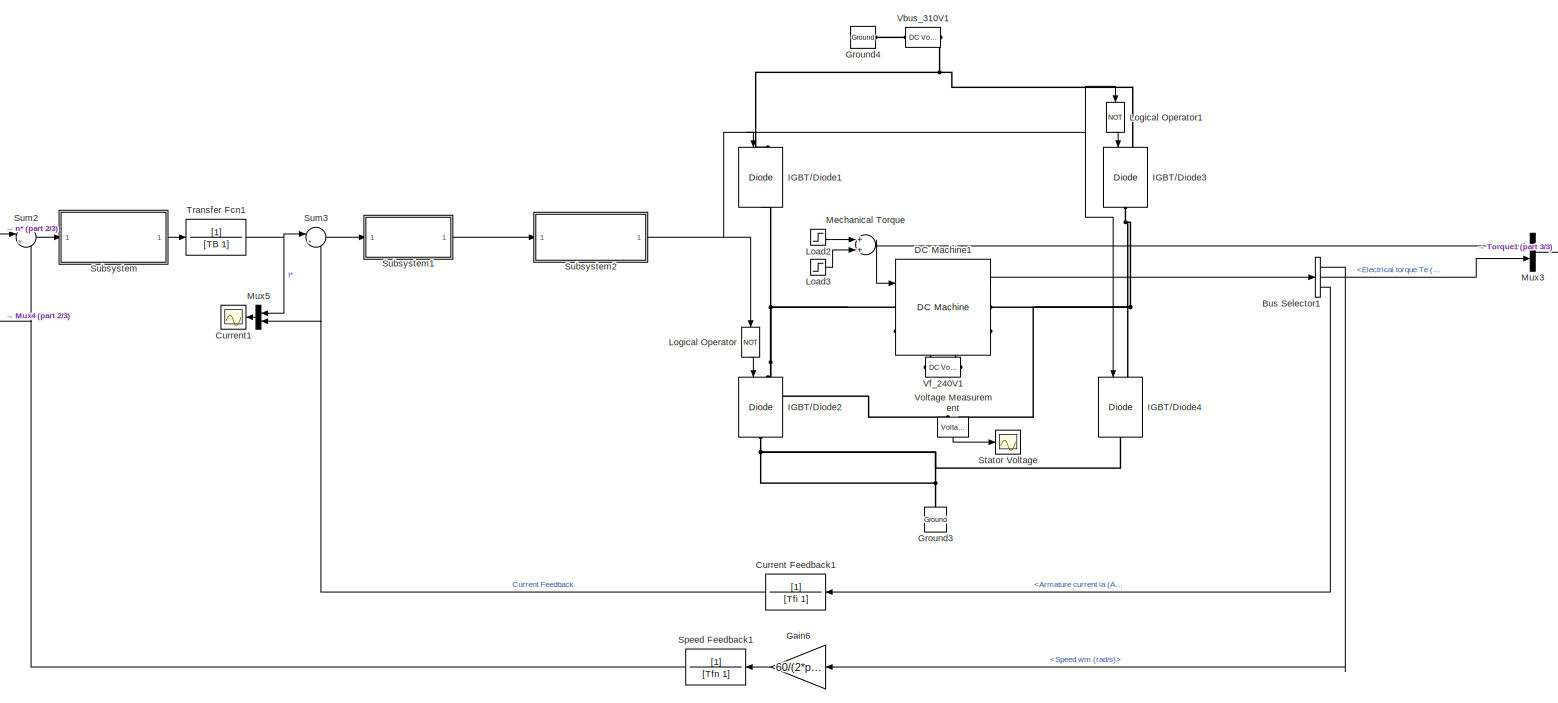
[diagram: root canvas - part 1/3, most of the canvas]
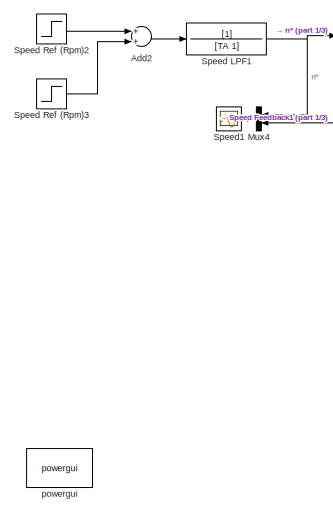
[diagram: root canvas - part 2/3, middle left region]
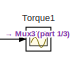
[diagram: root canvas - part 3/3, middle right region]
MODEL slx_61edc5777968
KIND model
CONFIG AbsTol = auto
CONFIG EnableMultiTasking = off
CONFIG FixedStep = auto
CONFIG MaxStep = 1e-6
CONFIG MinStep = auto
CONFIG RelTol = 1e-3
CONFIG SampleTimeConstraint = Unconstrained
CONFIG Solver = ode45
CONFIG SolverName = ode45
CONFIG StartTime = 0.0
CONFIG StopTime = 0.5
BLOCK [Sum] Add2
  InputSameDT = off
  OutDataTypeStr = Inherit: Inherit via internal rule
  Ports = [2, 1]
  SaturateOnIntegerOverflow = off
BLOCK [BusSelector] Bus Selector1
  OutputAsBus = off
  OutputSignals = Speed wm (rad/s),Electrical torque Te (n m),Armature current ia (A)
  Ports = [1, 3]
BLOCK [TransferFcn] Current Feedback1
  Denominator = [Tfi 1]
BLOCK [Scope] Current1
  Floating = off
  NumInputPorts = 1
  Ports = [1]
  ScopeSpecificationString = Simulink.scopes.TimeScopeBlockCfg('CurrentConfiguration', extmgr.ConfigurationSet(extmgr.Configuration('Core','General UI',true,'FigureColor',[1 1 1]),extmgr.Configuration('Core','Source UI',true),extmgr.Configuration('Sources','WiredSimulink',true,'DataLoggingVariableName','ScopeData1'),extmgr.Configuration('Visuals','Time Domain',true,'SerializedDisplays',{struct('MinYLimReal','-72.24721','MaxYL...<+1722ch>
BLOCK [Reference] DC Machine1  REF=powerlib/Machines/DC Machine
  Ports = [1, 1, 0, 0, 0, 2, 2]
  SourceBlock = powerlib/Machines/DC Machine
  SourceProductBaseCode = PS
  SourceProductName = Simscape Electrical
  SourceType = DC machine
BLOCK [Gain] Gain6
  Gain = 60/(2*pi)
  OutDataTypeStr = Inherit: Inherit via internal rule
  ParamDataTypeStr = Inherit: Inherit via internal rule
  SaturateOnIntegerOverflow = off
BLOCK [Reference] Ground3  REF=powerlib/Elements/Ground
  Ports = [0, 0, 0, 0, 0, 1]
  SourceBlock = powerlib/Elements/Ground
  SourceProductBaseCode = PS
  SourceProductName = Simscape Electrical
  SourceType = Ground
BLOCK [Reference] Ground4  REF=powerlib/Elements/Ground
  Ports = [0, 0, 0, 0, 0, 1]
  SourceBlock = powerlib/Elements/Ground
  SourceProductBaseCode = PS
  SourceProductName = Simscape Electrical
  SourceType = Ground
BLOCK [Reference] IGBT//Diode1  REF=powerlib/Power
Electronics/IGBT//Diode
  Ports = [1, 0, 0, 0, 0, 1, 1]
  SourceBlock = powerlib/Power\nElectronics/IGBT//Diode
  SourceProductBaseCode = PS
  SourceProductName = Simscape Electrical
  SourceType = IGBT/Diode
BLOCK [Reference] IGBT//Diode2  REF=powerlib/Power
Electronics/IGBT//Diode
  Ports = [1, 0, 0, 0, 0, 1, 1]
  SourceBlock = powerlib/Power\nElectronics/IGBT//Diode
  SourceProductBaseCode = PS
  SourceProductName = Simscape Electrical
  SourceType = IGBT/Diode
BLOCK [Reference] IGBT//Diode3  REF=powerlib/Power
Electronics/IGBT//Diode
  Ports = [1, 0, 0, 0, 0, 1, 1]
  SourceBlock = powerlib/Power\nElectronics/IGBT//Diode
  SourceProductBaseCode = PS
  SourceProductName = Simscape Electrical
  SourceType = IGBT/Diode
BLOCK [Reference] IGBT//Diode4  REF=powerlib/Power
Electronics/IGBT//Diode
  Ports = [1, 0, 0, 0, 0, 1, 1]
  SourceBlock = powerlib/Power\nElectronics/IGBT//Diode
  SourceProductBaseCode = PS
  SourceProductName = Simscape Electrical
  SourceType = IGBT/Diode
BLOCK [Step] Load2
  After = TN
  SampleTime = 0
  Time = 0.4
BLOCK [Step] Load3
  After = -0.2*TN
  SampleTime = 0
  Time = 0.6
BLOCK [Logic] Logical Operator
  AllPortsSameDT = off
  Operator = NOT
  OutDataTypeStr = boolean
  Ports = [1, 1]
BLOCK [Logic] Logical Operator1
  AllPortsSameDT = off
  Operator = NOT
  OutDataTypeStr = boolean
  Ports = [1, 1]
BLOCK [Sum] Mechanical Torque
  InputSameDT = off
  OutDataTypeStr = Inherit: Inherit via internal rule
  Ports = [2, 1]
  SaturateOnIntegerOverflow = off
BLOCK [Mux] Mux3
  DisplayOption = bar
  Inputs = 2
  Ports = [2, 1]
BLOCK [Mux] Mux4
  DisplayOption = bar
  Inputs = 2
  Ports = [2, 1]
BLOCK [Mux] Mux5
  DisplayOption = bar
  Inputs = 2
  Ports = [2, 1]
BLOCK [TransferFcn] Speed Feedback1
  Denominator = [Tfn 1]
BLOCK [TransferFcn] Speed LPF1
  Denominator = [TA 1]
BLOCK [Step] Speed Ref (Rpm)2
  After = 0.8*nN
  SampleTime = 0
  Time = 0.2
BLOCK [Step] Speed Ref (Rpm)3
  After = -0.3*nN
  SampleTime = 0
  Time = 0.8
  VectorParams1D = off
BLOCK [Scope] Speed1
  Floating = off
  NumInputPorts = 1
  Ports = [1]
  ScopeSpecificationString = Simulink.scopes.TimeScopeBlockCfg('CurrentConfiguration', extmgr.ConfigurationSet(extmgr.Configuration('Core','General UI',true,'FigureColor',[1 1 1]),extmgr.Configuration('Core','Source UI',true),extmgr.Configuration('Sources','WiredSimulink',true,'DataLoggingVariableName','ScopeData4'),extmgr.Configuration('Visuals','Time Domain',true,'SerializedDisplays',{struct('MinYLimReal','-168.11502','MaxY...<+1661ch>
BLOCK [Scope] Stator Voltage
  Floating = off
  NumInputPorts = 1
  Ports = [1]
  ScopeSpecificationString = Simulink.scopes.TimeScopeBlockCfg('CurrentConfiguration', extmgr.ConfigurationSet(extmgr.Configuration('Core','General UI',true,'FigureColor',[1 1 1]),extmgr.Configuration('Core','Source UI',true),extmgr.Configuration('Sources','WiredSimulink',true,'DataLoggingVariableName','ScopeData7'),extmgr.Configuration('Visuals','Time Domain',true,'SerializedDisplays',{struct('MinYLimReal','-387.49999','MaxY...<+1619ch>
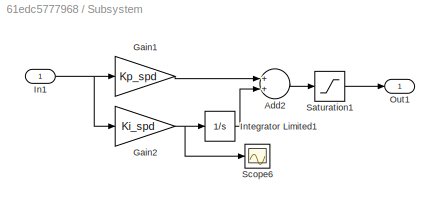
BLOCK [SubSystem] Subsystem
  Ports = [1, 1]
  RequestExecContextInheritance = off
BLOCK [Sum] Subsystem/Add2
  InputSameDT = off
  OutDataTypeStr = Inherit: Inherit via internal rule
  Ports = [2, 1]
  SaturateOnIntegerOverflow = off
BLOCK [Gain] Subsystem/Gain1
  Gain = Kp_spd
  OutDataTypeStr = Inherit: Inherit via internal rule
  ParamDataTypeStr = Inherit: Inherit via internal rule
  SaturateOnIntegerOverflow = off
BLOCK [Gain] Subsystem/Gain2
  Gain = Ki_spd
  OutDataTypeStr = Inherit: Inherit via internal rule
  ParamDataTypeStr = Inherit: Inherit via internal rule
  SaturateOnIntegerOverflow = off
BLOCK [Inport] Subsystem/In1
  IconDisplay = Port number
BLOCK [Integrator] Subsystem/Integrator Limited1
  LimitOutput = on
  LowerSaturationLimit = 0
  Ports = [1, 1]
  UpperSaturationLimit = 2*IaN
BLOCK [Outport] Subsystem/Out1
  IconDisplay = Port number
BLOCK [Saturate] Subsystem/Saturation1
  InputPortMap = u0
  LowerLimit = -2*IaN
  Ports = [1, 1]
  UpperLimit = 2*IaN
BLOCK [Scope] Subsystem/Scope6
  Floating = off
  NumInputPorts = 1
  Ports = [1]
  ScopeSpecificationString = Simulink.scopes.TimeScopeBlockCfg('CurrentConfiguration', extmgr.ConfigurationSet(extmgr.Configuration('Core','General UI',true),extmgr.Configuration('Core','Source UI',true),extmgr.Configuration('Sources','WiredSimulink',true,'DataLoggingVariableName','ScopeData6'),extmgr.Configuration('Visuals','Time Domain',true,'SerializedDisplays',{struct('MinYLimReal','-24268.00302','MaxYLimReal','67435.9610...<+1425ch>
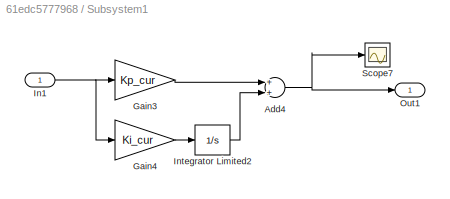
BLOCK [SubSystem] Subsystem1
  Ports = [1, 1]
  RequestExecContextInheritance = off
BLOCK [Sum] Subsystem1/Add4
  InputSameDT = off
  OutDataTypeStr = Inherit: Inherit via internal rule
  Ports = [2, 1]
  SaturateOnIntegerOverflow = off
BLOCK [Gain] Subsystem1/Gain3
  Gain = Kp_cur
  OutDataTypeStr = Inherit: Inherit via internal rule
  ParamDataTypeStr = Inherit: Inherit via internal rule
  SaturateOnIntegerOverflow = off
BLOCK [Gain] Subsystem1/Gain4
  Gain = Ki_cur
  OutDataTypeStr = Inherit: Inherit via internal rule
  ParamDataTypeStr = Inherit: Inherit via internal rule
  SaturateOnIntegerOverflow = off
BLOCK [Inport] Subsystem1/In1
  IconDisplay = Port number
BLOCK [Integrator] Subsystem1/Integrator Limited2
  LimitOutput = on
  LowerSaturationLimit = 0
  Ports = [1, 1]
  UpperSaturationLimit = 2*IaN
BLOCK [Outport] Subsystem1/Out1
  IconDisplay = Port number
BLOCK [Scope] Subsystem1/Scope7
  Floating = off
  NumInputPorts = 1
  Ports = [1]
  ScopeSpecificationString = Simulink.scopes.TimeScopeBlockCfg('CurrentConfiguration', extmgr.ConfigurationSet(extmgr.Configuration('Core','General UI',true),extmgr.Configuration('Core','Source UI',true),extmgr.Configuration('Sources','WiredSimulink',true,'DataLoggingVariableName','ScopeData7'),extmgr.Configuration('Visuals','Time Domain',true,'SerializedDisplays',{struct('MinYLimReal','-1844.02339','MaxYLimReal','1578.4194',...<+1383ch>
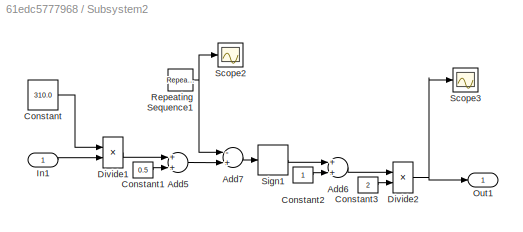
BLOCK [SubSystem] Subsystem2
  Ports = [1, 1]
  RequestExecContextInheritance = off
BLOCK [Sum] Subsystem2/Add5
  InputSameDT = off
  OutDataTypeStr = Inherit: Inherit via internal rule
  Ports = [2, 1]
  SaturateOnIntegerOverflow = off
BLOCK [Sum] Subsystem2/Add6
  InputSameDT = off
  OutDataTypeStr = Inherit: Inherit via internal rule
  Ports = [2, 1]
  SaturateOnIntegerOverflow = off
BLOCK [Sum] Subsystem2/Add7
  InputSameDT = off
  Inputs = -+
  OutDataTypeStr = Inherit: Inherit via internal rule
  Ports = [2, 1]
  SaturateOnIntegerOverflow = off
BLOCK [Constant] Subsystem2/Constant
  Value = 310.0
BLOCK [Constant] Subsystem2/Constant1
  Value = 0.5
BLOCK [Constant] Subsystem2/Constant2
BLOCK [Constant] Subsystem2/Constant3
  Value = 2
BLOCK [Product] Subsystem2/Divide1
  InputSameDT = off
  Inputs = /*
  OutDataTypeStr = Inherit: Inherit via internal rule
  Ports = [2, 1]
  RndMeth = Floor
  SaturateOnIntegerOverflow = off
BLOCK [Product] Subsystem2/Divide2
  InputSameDT = off
  Inputs = */
  OutDataTypeStr = Inherit: Inherit via internal rule
  Ports = [2, 1]
  RndMeth = Floor
  SaturateOnIntegerOverflow = off
BLOCK [Inport] Subsystem2/In1
  IconDisplay = Port number
BLOCK [Outport] Subsystem2/Out1
  IconDisplay = Port number
BLOCK [Reference] Subsystem2/Repeating Sequence1  REF=simulink/Sources/Repeating
Sequence
  Ports = [0, 1]
  SourceBlock = simulink/Sources/Repeating\nSequence
  SourceProductBaseCode = SL
  SourceProductName = Simulink
  SourceType = Repeating table
BLOCK [Scope] Subsystem2/Scope2
  Floating = off
  NumInputPorts = 1
  Ports = [1]
  ScopeSpecificationString = Simulink.scopes.TimeScopeBlockCfg('CurrentConfiguration', extmgr.ConfigurationSet(extmgr.Configuration('Core','General UI',true),extmgr.Configuration('Core','Source UI',true),extmgr.Configuration('Sources','WiredSimulink',true,'DataLoggingVariableName','ScopeData2'),extmgr.Configuration('Visuals','Time Domain',true,'SerializedDisplays',{struct('MinYLimReal','-0.125','MaxYLimReal','1.125','YLabelRe...<+1465ch>
BLOCK [Scope] Subsystem2/Scope3
  Floating = off
  NumInputPorts = 1
  Ports = [1]
  ScopeSpecificationString = Simulink.scopes.TimeScopeBlockCfg('CurrentConfiguration', extmgr.ConfigurationSet(extmgr.Configuration('Core','General UI',true),extmgr.Configuration('Core','Source UI',true),extmgr.Configuration('Sources','WiredSimulink',true,'DataLoggingVariableName','ScopeData3'),extmgr.Configuration('Visuals','Time Domain',true,'SerializedDisplays',{struct('MinYLimReal','-0.125','MaxYLimReal','1.125','YLabelRe...<+1428ch>
BLOCK [Signum] Subsystem2/Sign1
BLOCK [Sum] Sum2
  IconShape = round
  InputSameDT = off
  Inputs = |+-
  OutDataTypeStr = Inherit: Inherit via internal rule
  Ports = [2, 1]
  SaturateOnIntegerOverflow = off
BLOCK [Sum] Sum3
  IconShape = round
  InputSameDT = off
  Inputs = |+-
  OutDataTypeStr = Inherit: Inherit via internal rule
  Ports = [2, 1]
  SaturateOnIntegerOverflow = off
BLOCK [Scope] Torque1
  Floating = off
  NumInputPorts = 1
  Ports = [1]
  ScopeSpecificationString = Simulink.scopes.TimeScopeBlockCfg('CurrentConfiguration', extmgr.ConfigurationSet(extmgr.Configuration('Core','General UI',true,'FigureColor',[1 1 1]),extmgr.Configuration('Core','Source UI',true),extmgr.Configuration('Sources','WiredSimulink',true,'DataLoggingVariableName','ScopeData8'),extmgr.Configuration('Visuals','Time Domain',true,'SerializedDisplays',{struct('MinYLimReal','-100','MaxYLimRea...<+1655ch>
BLOCK [TransferFcn] Transfer Fcn1
  Denominator = [TB 1]
BLOCK [Reference] Vbus_310V1  REF=powerlib/Electrical
Sources/DC Voltage Source
  Ports = [0, 0, 0, 0, 0, 1, 1]
  SourceBlock = powerlib/Electrical\nSources/DC Voltage Source
  SourceProductBaseCode = PS
  SourceProductName = Simscape Electrical
  SourceType = DC Voltage Source
BLOCK [Reference] Vf_240V1  REF=powerlib/Electrical
Sources/DC Voltage Source
  Ports = [0, 0, 0, 0, 0, 1, 1]
  SourceBlock = powerlib/Electrical\nSources/DC Voltage Source
  SourceProductBaseCode = PS
  SourceProductName = Simscape Electrical
  SourceType = DC Voltage Source
BLOCK [Reference] Voltage Measurement  REF=powerlib/Measurements/Voltage Measurement
  Ports = [0, 1, 0, 0, 0, 2]
  SourceBlock = powerlib/Measurements/Voltage Measurement
  SourceProductBaseCode = PS
  SourceProductName = Simscape Electrical
  SourceType = Voltage Measurement
  UserDataPersistent = on
BLOCK [Reference] powergui  REF=powerlib/powergui
  Ports = []
  Priority = 1
  SourceBlock = powerlib/powergui
  SourceProductBaseCode = PS
  SourceProductName = Simscape Electrical
  SourceType = PSB option menu block
LINE Add2:1 -> Speed LPF1:1
LINE Bus Selector1:1 -> Gain6:1
LINE Bus Selector1:2 -> Mux3:2
LINE Bus Selector1:3 -> Current Feedback1:1
NET Current Feedback1:1 -> Mux5:2, Sum3:2
LINE DC Machine1:1 -> Bus Selector1:1
LINE Gain6:1 -> Speed Feedback1:1
LINE Load2:1 -> Mechanical Torque:1
LINE Load3:1 -> Mechanical Torque:2
LINE Logical Operator1:1 -> IGBT//Diode3:1
LINE Logical Operator:1 -> IGBT//Diode2:1
NET Mechanical Torque:1 -> DC Machine1:1, Mux3:1
LINE Mux3:1 -> Torque1:1
LINE Mux4:1 -> Speed1:1
LINE Mux5:1 -> Current1:1
NET Speed Feedback1:1 -> Mux4:2, Sum2:2
NET Speed LPF1:1 -> Mux4:1, Sum2:1
LINE Speed Ref (Rpm)2:1 -> Add2:1
LINE Speed Ref (Rpm)3:1 -> Add2:2
LINE Subsystem/Add2:1 -> Subsystem/Saturation1:1
LINE Subsystem/Gain1:1 -> Subsystem/Add2:1
NET Subsystem/Gain2:1 -> Subsystem/Integrator Limited1:1, Subsystem/Scope6:1
NET Subsystem/In1:1 -> Subsystem/Gain1:1, Subsystem/Gain2:1
LINE Subsystem/Integrator Limited1:1 -> Subsystem/Add2:2
LINE Subsystem/Saturation1:1 -> Subsystem/Out1:1
NET Subsystem1/Add4:1 -> Subsystem1/Out1:1, Subsystem1/Scope7:1
LINE Subsystem1/Gain3:1 -> Subsystem1/Add4:1
LINE Subsystem1/Gain4:1 -> Subsystem1/Integrator Limited2:1
NET Subsystem1/In1:1 -> Subsystem1/Gain3:1, Subsystem1/Gain4:1
LINE Subsystem1/Integrator Limited2:1 -> Subsystem1/Add4:2
LINE Subsystem1:1 -> Subsystem2:1
LINE Subsystem2/Add5:1 -> Subsystem2/Add7:2
LINE Subsystem2/Add6:1 -> Subsystem2/Divide2:1
LINE Subsystem2/Add7:1 -> Subsystem2/Sign1:1
LINE Subsystem2/Constant1:1 -> Subsystem2/Add5:2
LINE Subsystem2/Constant2:1 -> Subsystem2/Add6:2
LINE Subsystem2/Constant3:1 -> Subsystem2/Divide2:2
LINE Subsystem2/Constant:1 -> Subsystem2/Divide1:1
LINE Subsystem2/Divide1:1 -> Subsystem2/Add5:1
NET Subsystem2/Divide2:1 -> Subsystem2/Out1:1, Subsystem2/Scope3:1
LINE Subsystem2/In1:1 -> Subsystem2/Divide1:2
NET Subsystem2/Repeating Sequence1:1 -> Subsystem2/Add7:1, Subsystem2/Scope2:1
LINE Subsystem2/Sign1:1 -> Subsystem2/Add6:1
NET Subsystem2:1 -> IGBT//Diode1:1, IGBT//Diode4:1, Logical Operator1:1, Logical Operator:1
LINE Subsystem:1 -> Transfer Fcn1:1
LINE Sum2:1 -> Subsystem:1
LINE Sum3:1 -> Subsystem1:1
NET Transfer Fcn1:1 -> Mux5:1, Sum3:1
LINE Voltage Measurement:1 -> Stator Voltage:1
PNET net1: DC Machine1:LConn1 -- IGBT//Diode1:RConn1 -- IGBT//Diode2:LConn1 -- Voltage Measurement:LConn1
PLINE DC Machine1:LConn2 -- Vf_240V1:RConn1
PNET net2: DC Machine1:RConn1 -- IGBT//Diode3:RConn1 -- IGBT//Diode4:LConn1 -- Voltage Measurement:LConn2
PLINE DC Machine1:RConn2 -- Vf_240V1:LConn1
PNET net3: Ground3:LConn1 -- IGBT//Diode2:RConn1 -- IGBT//Diode4:RConn1
PLINE Ground4:LConn1 -- Vbus_310V1:LConn1
PNET net4: IGBT//Diode1:LConn1 -- IGBT//Diode3:LConn1 -- Vbus_310V1:RConn1
note: NET lines group one-source signal fan-out (src -> all destinations, sorted); 1:1 wires keep LINE; PNET lines group multi-terminal physical nets as a canonical sorted terminal list (undirected conserving connections); 2-terminal nets keep the pairwise PLINE form
